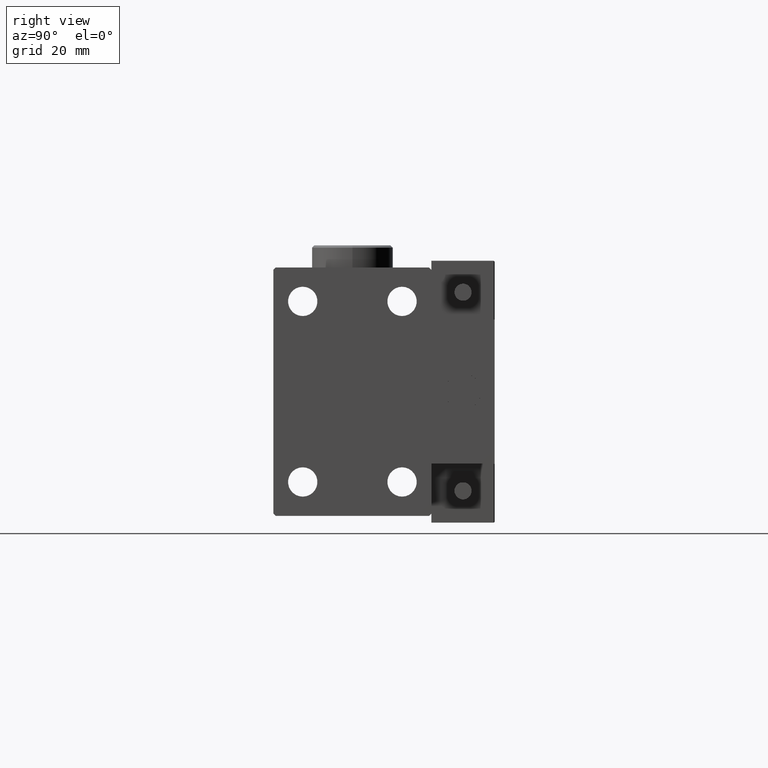
[diagram: clean part render]
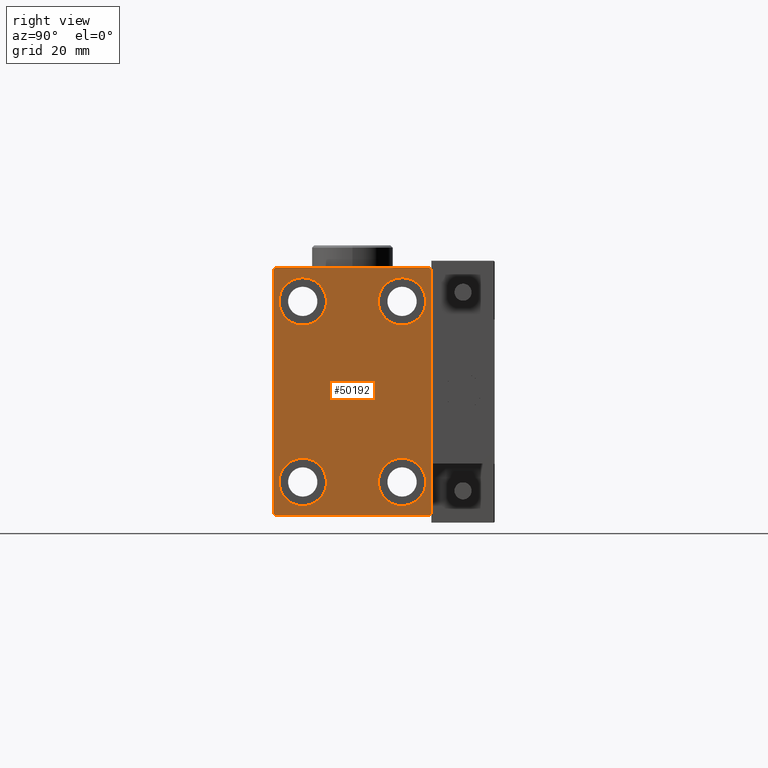
[diagram: same view with one face highlighted and labeled with its STEP entity id]
A machine part, right view. The second image highlights one B-rep face of the part: STEP entity #50192.
In plain terms, the highlighted planar face has unit normal (1, 0, 0).
Its self-contained STEP definition (entity closure, byte-faithful):
#75 = VERTEX_POINT ( 'NONE', #47116 ) ;
#179 = AXIS2_PLACEMENT_3D ( 'NONE', #29611, #17894, #30116 ) ;
#1347 = LINE ( 'NONE', #24792, #46645 ) ;
#1465 = CARTESIAN_POINT ( 'NONE',  ( 71.00000000000000000, 0.000000000000000000, 0.000000000000000000 ) ) ;
#1742 = CARTESIAN_POINT ( 'NONE',  ( 71.00000000000000000, -17.50000000000000000, 27.49999999999999645 ) ) ;
#1997 = AXIS2_PLACEMENT_3D ( 'NONE', #9667, #37794, #29968 ) ;
#2549 = EDGE_CURVE ( 'NONE', #16459, #10735, #26400, .T. ) ;
#2564 = CIRCLE ( 'NONE', #20051, 5.250000000000000888 ) ;
#2941 = CIRCLE ( 'NONE', #1997, 5.250000000000000888 ) ;
#3212 = VERTEX_POINT ( 'NONE', #19505 ) ;
#3428 = ORIENTED_EDGE ( 'NONE', *, *, #43260, .T. ) ;
#3492 = CIRCLE ( 'NONE', #32608, 5.250000000000000888 ) ;
#3735 = VERTEX_POINT ( 'NONE', #35448 ) ;
#4062 = CARTESIAN_POINT ( 'NONE',  ( 71.00000000000000000, 22.25000000000000711, 22.25000000000000711 ) ) ;
#4104 = VERTEX_POINT ( 'NONE', #21545 ) ;
#4119 = EDGE_CURVE ( 'NONE', #36741, #15439, #37431, .T. ) ;
#4307 = EDGE_CURVE ( 'NONE', #33247, #4104, #36351, .T. ) ;
#4409 = CARTESIAN_POINT ( 'NONE',  ( 71.00000000000000000, -11.00000000000000355, 14.75000000000000000 ) ) ;
#4439 = EDGE_CURVE ( 'NONE', #75, #39173, #18288, .T. ) ;
#5339 = CARTESIAN_POINT ( 'NONE',  ( 71.00000000000000000, -17.50000000000000000, -27.50000000000000355 ) ) ;
#5374 = ORIENTED_EDGE ( 'NONE', *, *, #16174, .T. ) ;
#5391 = EDGE_CURVE ( 'NONE', #29868, #36741, #1347, .T. ) ;
#5497 = CARTESIAN_POINT ( 'NONE',  ( 71.00000000000000000, -11.00000000000000355, -20.00000000000000000 ) ) ;
#5700 = EDGE_LOOP ( 'NONE', ( #23024, #36573, #35224, #44937, #40331, #51582, #27948, #3428 ) ) ;
#5712 = ORIENTED_EDGE ( 'NONE', *, *, #45576, .T. ) ;
#6066 = CARTESIAN_POINT ( 'NONE',  ( 71.00000000000000000, 11.00000000000000355, 14.75000000000000000 ) ) ;
#7045 = ORIENTED_EDGE ( 'NONE', *, *, #8790, .T. ) ;
#7649 = DIRECTION ( 'NONE',  ( 0.000000000000000000, 0.000000000000000000, 1.000000000000000000 ) ) ;
#7763 = FACE_BOUND ( 'NONE', #49837, .T. ) ;
#8242 = LINE ( 'NONE', #4062, #29848 ) ;
#8450 = AXIS2_PLACEMENT_3D ( 'NONE', #28277, #44164, #40000 ) ;
#8513 = VECTOR ( 'NONE', #34845, 1000.000000000000114 ) ;
#8528 = CIRCLE ( 'NONE', #28497, 5.250000000000000888 ) ;
#8784 = FACE_OUTER_BOUND ( 'NONE', #5700, .T. ) ;
#8790 = EDGE_CURVE ( 'NONE', #48106, #3212, #3492, .T. ) ;
#9089 = EDGE_CURVE ( 'NONE', #15439, #33247, #30434, .T. ) ;
#9667 = CARTESIAN_POINT ( 'NONE',  ( 71.00000000000000000, 11.00000000000000355, 20.00000000000000000 ) ) ;
#10551 = CARTESIAN_POINT ( 'NONE',  ( 71.00000000000000000, -11.00000000000000355, 20.00000000000000000 ) ) ;
#10735 = VERTEX_POINT ( 'NONE', #49858 ) ;
#13303 = ORIENTED_EDGE ( 'NONE', *, *, #22043, .T. ) ;
#13308 = VECTOR ( 'NONE', #17645, 1000.000000000000000 ) ;
#14623 = VECTOR ( 'NONE', #42171, 1000.000000000000000 ) ;
#15019 = ORIENTED_EDGE ( 'NONE', *, *, #44951, .T. ) ;
#15076 = CARTESIAN_POINT ( 'NONE',  ( 71.00000000000000000, 11.00000000000000355, -14.75000000000000000 ) ) ;
#15439 = VERTEX_POINT ( 'NONE', #50785 ) ;
#16174 = EDGE_CURVE ( 'NONE', #3735, #46000, #2941, .T. ) ;
#16459 = VERTEX_POINT ( 'NONE', #26098 ) ;
#17645 = DIRECTION ( 'NONE',  ( 0.000000000000000000, 0.000000000000000000, -1.000000000000000000 ) ) ;
#17894 = DIRECTION ( 'NONE',  ( -1.000000000000000000, -0.000000000000000000, -0.000000000000000000 ) ) ;
#18288 = CIRCLE ( 'NONE', #29096, 5.250000000000000888 ) ;
#19077 = CIRCLE ( 'NONE', #37361, 5.250000000000000888 ) ;
#19505 = CARTESIAN_POINT ( 'NONE',  ( 71.00000000000000000, -11.00000000000000355, -14.75000000000000000 ) ) ;
#20051 = AXIS2_PLACEMENT_3D ( 'NONE', #10551, #42324, #49666 ) ;
#20751 = PLANE ( 'NONE',  #43374 ) ;
#20992 = EDGE_LOOP ( 'NONE', ( #13303, #5374 ) ) ;
#21241 = DIRECTION ( 'NONE',  ( 0.000000000000000000, 1.000000000000000000, 0.000000000000000000 ) ) ;
#21545 = CARTESIAN_POINT ( 'NONE',  ( 71.00000000000000000, 17.00000000000000711, -27.50000000000000355 ) ) ;
#21712 = VERTEX_POINT ( 'NONE', #4409 ) ;
#21898 = DIRECTION ( 'NONE',  ( -1.000000000000000000, -0.000000000000000000, -0.000000000000000000 ) ) ;
#22043 = EDGE_CURVE ( 'NONE', #46000, #3735, #22644, .T. ) ;
#22157 = CARTESIAN_POINT ( 'NONE',  ( 71.00000000000000000, -17.00000000000001421, 27.49999999999999645 ) ) ;
#22619 = EDGE_CURVE ( 'NONE', #3212, #48106, #8528, .T. ) ;
#22644 = CIRCLE ( 'NONE', #179, 5.250000000000000888 ) ;
#23024 = ORIENTED_EDGE ( 'NONE', *, *, #36560, .T. ) ;
#23402 = EDGE_CURVE ( 'NONE', #21712, #34756, #34235, .T. ) ;
#23648 = FACE_BOUND ( 'NONE', #50852, .T. ) ;
#24792 = CARTESIAN_POINT ( 'NONE',  ( 71.00000000000000000, -22.25000000000000711, 22.25000000000000711 ) ) ;
#25332 = DIRECTION ( 'NONE',  ( -1.000000000000000000, -0.000000000000000000, -0.000000000000000000 ) ) ;
#26098 = CARTESIAN_POINT ( 'NONE',  ( 71.00000000000000000, 17.50000000000000711, -27.00000000000000355 ) ) ;
#26400 = LINE ( 'NONE', #34989, #44963 ) ;
#26657 = DIRECTION ( 'NONE',  ( 0.000000000000000000, -1.261617073437677752E-16, 1.000000000000000000 ) ) ;
#27019 = VERTEX_POINT ( 'NONE', #41091 ) ;
#27203 = CARTESIAN_POINT ( 'NONE',  ( 71.00000000000000000, -17.50000000000000000, 27.00000000000001066 ) ) ;
#27298 = CARTESIAN_POINT ( 'NONE',  ( 71.00000000000000000, -22.25000000000000355, -22.25000000000000355 ) ) ;
#27948 = ORIENTED_EDGE ( 'NONE', *, *, #2549, .T. ) ;
#28277 = CARTESIAN_POINT ( 'NONE',  ( 71.00000000000000000, -11.00000000000000355, 20.00000000000000000 ) ) ;
#28318 = DIRECTION ( 'NONE',  ( 1.000000000000000000, 0.000000000000000000, 0.000000000000000000 ) ) ;
#28497 = AXIS2_PLACEMENT_3D ( 'NONE', #39424, #34479, #7649 ) ;
#28574 = DIRECTION ( 'NONE',  ( 0.000000000000000000, 0.000000000000000000, -1.000000000000000000 ) ) ;
#28616 = CARTESIAN_POINT ( 'NONE',  ( 71.00000000000000000, -11.00000000000000355, -25.25000000000000000 ) ) ;
#29096 = AXIS2_PLACEMENT_3D ( 'NONE', #43097, #50945, #31622 ) ;
#29611 = CARTESIAN_POINT ( 'NONE',  ( 71.00000000000000000, 11.00000000000000355, 20.00000000000000000 ) ) ;
#29722 = DIRECTION ( 'NONE',  ( 0.000000000000000000, 0.000000000000000000, 1.000000000000000000 ) ) ;
#29848 = VECTOR ( 'NONE', #47355, 1000.000000000000114 ) ;
#29868 = VERTEX_POINT ( 'NONE', #22157 ) ;
#29968 = DIRECTION ( 'NONE',  ( 0.000000000000000000, 0.000000000000000000, 1.000000000000000000 ) ) ;
#30116 = DIRECTION ( 'NONE',  ( 0.000000000000000000, 0.000000000000000000, 1.000000000000000000 ) ) ;
#30434 = LINE ( 'NONE', #27298, #8513 ) ;
#31622 = DIRECTION ( 'NONE',  ( 0.000000000000000000, 0.000000000000000000, 1.000000000000000000 ) ) ;
#32426 = ORIENTED_EDGE ( 'NONE', *, *, #22619, .T. ) ;
#32608 = AXIS2_PLACEMENT_3D ( 'NONE', #5497, #21898, #29722 ) ;
#32619 = DIRECTION ( 'NONE',  ( 0.000000000000000000, -0.7071067811865474617, -0.7071067811865474617 ) ) ;
#33135 = CARTESIAN_POINT ( 'NONE',  ( 71.00000000000000000, 22.25000000000000711, -22.25000000000000711 ) ) ;
#33247 = VERTEX_POINT ( 'NONE', #42972 ) ;
#33651 = DIRECTION ( 'NONE',  ( -0.000000000000000000, 0.7071067811865474617, 0.7071067811865474617 ) ) ;
#34235 = CIRCLE ( 'NONE', #8450, 5.250000000000000888 ) ;
#34479 = DIRECTION ( 'NONE',  ( -1.000000000000000000, -0.000000000000000000, -0.000000000000000000 ) ) ;
#34615 = LINE ( 'NONE', #50281, #14623 ) ;
#34756 = VERTEX_POINT ( 'NONE', #38415 ) ;
#34845 = DIRECTION ( 'NONE',  ( -0.000000000000000000, 0.7071067811865474617, -0.7071067811865474617 ) ) ;
#34989 = CARTESIAN_POINT ( 'NONE',  ( 71.00000000000000000, 17.50000000000000711, -27.50000000000000355 ) ) ;
#35224 = ORIENTED_EDGE ( 'NONE', *, *, #4119, .T. ) ;
#35448 = CARTESIAN_POINT ( 'NONE',  ( 71.00000000000000000, 11.00000000000000355, 25.25000000000000000 ) ) ;
#36351 = LINE ( 'NONE', #5339, #38254 ) ;
#36560 = EDGE_CURVE ( 'NONE', #27019, #29868, #34615, .T. ) ;
#36573 = ORIENTED_EDGE ( 'NONE', *, *, #5391, .T. ) ;
#36741 = VERTEX_POINT ( 'NONE', #27203 ) ;
#37361 = AXIS2_PLACEMENT_3D ( 'NONE', #44117, #25332, #41237 ) ;
#37431 = LINE ( 'NONE', #1742, #13308 ) ;
#37794 = DIRECTION ( 'NONE',  ( -1.000000000000000000, -0.000000000000000000, -0.000000000000000000 ) ) ;
#38254 = VECTOR ( 'NONE', #21241, 1000.000000000000000 ) ;
#38415 = CARTESIAN_POINT ( 'NONE',  ( 71.00000000000000000, -11.00000000000000355, 25.25000000000000000 ) ) ;
#39173 = VERTEX_POINT ( 'NONE', #15076 ) ;
#39424 = CARTESIAN_POINT ( 'NONE',  ( 71.00000000000000000, -11.00000000000000355, -20.00000000000000000 ) ) ;
#39543 = FACE_BOUND ( 'NONE', #20992, .T. ) ;
#40000 = DIRECTION ( 'NONE',  ( 0.000000000000000000, 0.000000000000000000, 1.000000000000000000 ) ) ;
#40331 = ORIENTED_EDGE ( 'NONE', *, *, #4307, .T. ) ;
#40530 = VECTOR ( 'NONE', #33651, 1000.000000000000114 ) ;
#40807 = FACE_BOUND ( 'NONE', #43356, .T. ) ;
#41017 = EDGE_CURVE ( 'NONE', #4104, #16459, #41718, .T. ) ;
#41091 = CARTESIAN_POINT ( 'NONE',  ( 71.00000000000000000, 17.00000000000001421, 27.50000000000000355 ) ) ;
#41237 = DIRECTION ( 'NONE',  ( 0.000000000000000000, 0.000000000000000000, 1.000000000000000000 ) ) ;
#41718 = LINE ( 'NONE', #33135, #40530 ) ;
#42171 = DIRECTION ( 'NONE',  ( 0.000000000000000000, -1.000000000000000000, -1.982541115402065110E-16 ) ) ;
#42324 = DIRECTION ( 'NONE',  ( -1.000000000000000000, -0.000000000000000000, -0.000000000000000000 ) ) ;
#42972 = CARTESIAN_POINT ( 'NONE',  ( 71.00000000000000000, -17.00000000000000000, -27.50000000000000355 ) ) ;
#43097 = CARTESIAN_POINT ( 'NONE',  ( 71.00000000000000000, 11.00000000000000355, -20.00000000000000000 ) ) ;
#43260 = EDGE_CURVE ( 'NONE', #10735, #27019, #8242, .T. ) ;
#43356 = EDGE_LOOP ( 'NONE', ( #7045, #32426 ) ) ;
#43374 = AXIS2_PLACEMENT_3D ( 'NONE', #1465, #28318, #28574 ) ;
#44117 = CARTESIAN_POINT ( 'NONE',  ( 71.00000000000000000, 11.00000000000000355, -20.00000000000000000 ) ) ;
#44164 = DIRECTION ( 'NONE',  ( -1.000000000000000000, -0.000000000000000000, -0.000000000000000000 ) ) ;
#44763 = ORIENTED_EDGE ( 'NONE', *, *, #23402, .T. ) ;
#44937 = ORIENTED_EDGE ( 'NONE', *, *, #9089, .T. ) ;
#44951 = EDGE_CURVE ( 'NONE', #39173, #75, #19077, .T. ) ;
#44963 = VECTOR ( 'NONE', #26657, 1000.000000000000000 ) ;
#45576 = EDGE_CURVE ( 'NONE', #34756, #21712, #2564, .T. ) ;
#46000 = VERTEX_POINT ( 'NONE', #6066 ) ;
#46645 = VECTOR ( 'NONE', #32619, 1000.000000000000114 ) ;
#47116 = CARTESIAN_POINT ( 'NONE',  ( 71.00000000000000000, 11.00000000000000355, -25.25000000000000000 ) ) ;
#47355 = DIRECTION ( 'NONE',  ( -0.000000000000000000, -0.7071067811865474617, 0.7071067811865474617 ) ) ;
#48106 = VERTEX_POINT ( 'NONE', #28616 ) ;
#49666 = DIRECTION ( 'NONE',  ( 0.000000000000000000, 0.000000000000000000, 1.000000000000000000 ) ) ;
#49837 = EDGE_LOOP ( 'NONE', ( #50104, #15019 ) ) ;
#49858 = CARTESIAN_POINT ( 'NONE',  ( 71.00000000000000000, 17.50000000000000000, 27.00000000000001776 ) ) ;
#50104 = ORIENTED_EDGE ( 'NONE', *, *, #4439, .T. ) ;
#50192 = ADVANCED_FACE ( 'NONE', ( #7763, #23648, #39543, #40807, #8784 ), #20751, .T. ) ;
#50281 = CARTESIAN_POINT ( 'NONE',  ( 71.00000000000000000, 17.50000000000000000, 27.50000000000000355 ) ) ;
#50785 = CARTESIAN_POINT ( 'NONE',  ( 71.00000000000000000, -17.50000000000000000, -27.00000000000000355 ) ) ;
#50852 = EDGE_LOOP ( 'NONE', ( #44763, #5712 ) ) ;
#50945 = DIRECTION ( 'NONE',  ( -1.000000000000000000, -0.000000000000000000, -0.000000000000000000 ) ) ;
#51582 = ORIENTED_EDGE ( 'NONE', *, *, #41017, .T. ) ;